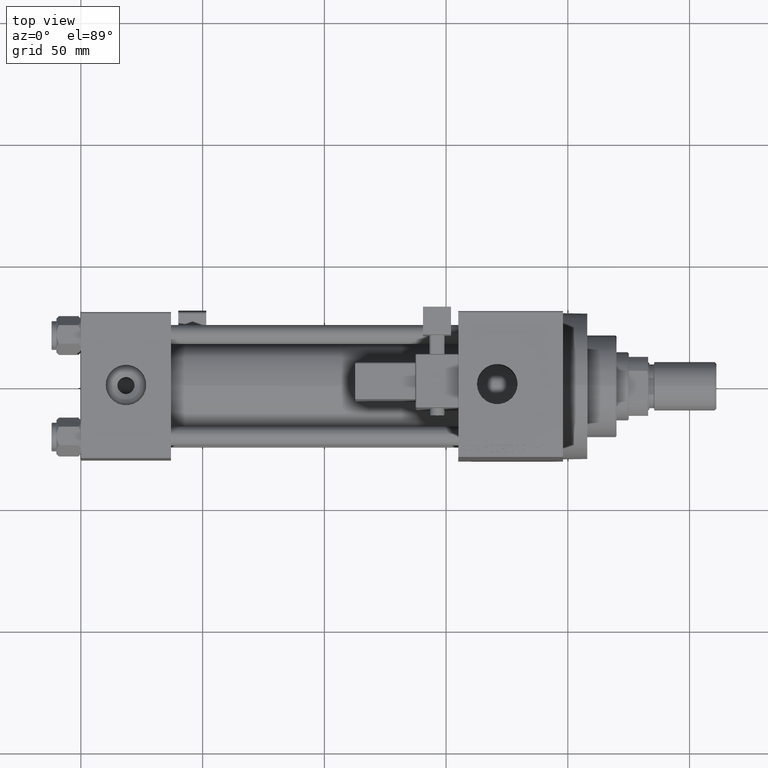
[diagram: clean part render]
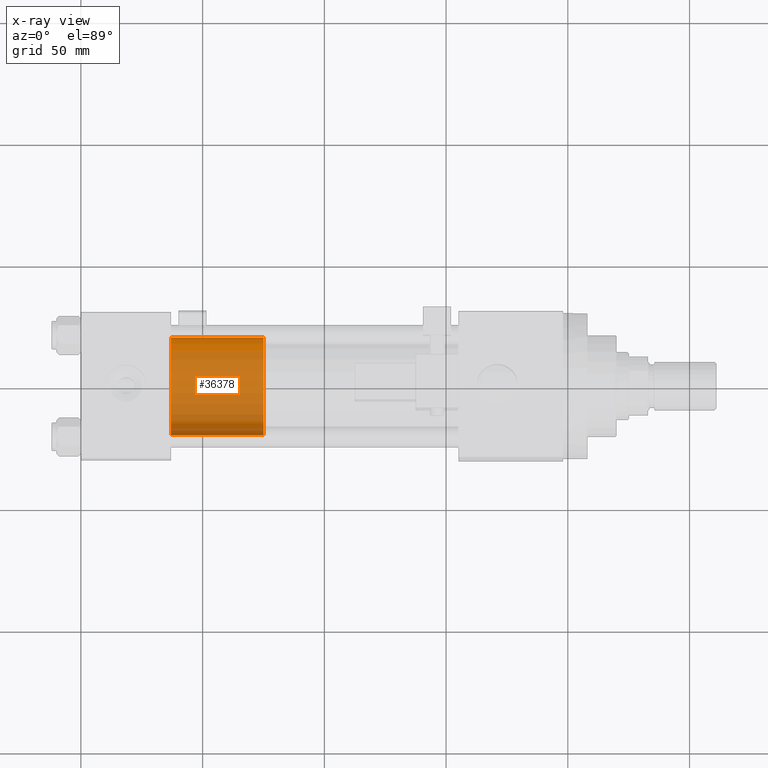
[diagram: x-ray — body ghosted, one internal face saturated and labeled with its STEP entity id]
A machine part, top view, then the same camera in x-ray: the body is ghosted and one INTERNAL B-rep face — a face not visible from any outside direction — is saturated and labeled: STEP entity #36378.
In plain terms, the highlighted cylindrical surface (partial cylindrical patch) has radius 20 mm, axis along (-1, 0, 0).
Its self-contained STEP definition (entity closure, byte-faithful):
#1582 = CARTESIAN_POINT ( 'NONE',  ( 0.000000000000000000, 0.000000000000000000, 0.000000000000000000 ) ) ;
#1606 = CIRCLE ( 'NONE', #14504, 20.00000000000000000 ) ;
#1758 = EDGE_LOOP ( 'NONE', ( #19762, #49198, #12362, #10225 ) ) ;
#2514 = FACE_OUTER_BOUND ( 'NONE', #1758, .T. ) ;
#5119 = DIRECTION ( 'NONE',  ( 0.000000000000000000, 0.000000000000000000, 1.000000000000000000 ) ) ;
#7170 = DIRECTION ( 'NONE',  ( -0.000000000000000000, -0.000000000000000000, -1.000000000000000000 ) ) ;
#10225 = ORIENTED_EDGE ( 'NONE', *, *, #32866, .F. ) ;
#12362 = ORIENTED_EDGE ( 'NONE', *, *, #26345, .T. ) ;
#14504 = AXIS2_PLACEMENT_3D ( 'NONE', #1582, #5119, #35858 ) ;
#15203 = CARTESIAN_POINT ( 'NONE',  ( -20.00000000000000000, 0.000000000000000000, 38.00000000000000000 ) ) ;
#16657 = VERTEX_POINT ( 'NONE', #17854 ) ;
#17854 = CARTESIAN_POINT ( 'NONE',  ( 20.00000000000000000, 2.449293598294706513E-15, 0.000000000000000000 ) ) ;
#18232 = LINE ( 'NONE', #36895, #22697 ) ;
#18819 = VERTEX_POINT ( 'NONE', #32053 ) ;
#19071 = EDGE_CURVE ( 'NONE', #39864, #18819, #23970, .T. ) ;
#19762 = ORIENTED_EDGE ( 'NONE', *, *, #19071, .F. ) ;
#21903 = DIRECTION ( 'NONE',  ( -0.000000000000000000, -0.000000000000000000, -1.000000000000000000 ) ) ;
#22697 = VECTOR ( 'NONE', #29325, 1000.000000000000000 ) ;
#23680 = CARTESIAN_POINT ( 'NONE',  ( -20.00000000000000000, 0.000000000000000000, 0.000000000000000000 ) ) ;
#23970 = CIRCLE ( 'NONE', #35237, 20.00000000000000000 ) ;
#26226 = CARTESIAN_POINT ( 'NONE',  ( 0.000000000000000000, 0.000000000000000000, 38.00000000000000000 ) ) ;
#26345 = EDGE_CURVE ( 'NONE', #16657, #37069, #1606, .T. ) ;
#26474 = CARTESIAN_POINT ( 'NONE',  ( 20.00000000000000000, 2.449293598294706513E-15, 38.00000000000000000 ) ) ;
#29325 = DIRECTION ( 'NONE',  ( -0.000000000000000000, -0.000000000000000000, -1.000000000000000000 ) ) ;
#29462 = CYLINDRICAL_SURFACE ( 'NONE', #41349, 20.00000000000000000 ) ;
#32053 = CARTESIAN_POINT ( 'NONE',  ( -20.00000000000000000, 0.000000000000000000, 38.00000000000000000 ) ) ;
#32866 = EDGE_CURVE ( 'NONE', #18819, #37069, #41713, .T. ) ;
#33239 = VECTOR ( 'NONE', #7170, 1000.000000000000000 ) ;
#33565 = DIRECTION ( 'NONE',  ( 0.000000000000000000, 0.000000000000000000, 1.000000000000000000 ) ) ;
#35237 = AXIS2_PLACEMENT_3D ( 'NONE', #26226, #33565, #38560 ) ;
#35858 = DIRECTION ( 'NONE',  ( 1.000000000000000000, 0.000000000000000000, 0.000000000000000000 ) ) ;
#36378 = ADVANCED_FACE ( 'NONE', ( #2514 ), #29462, .T. ) ;
#36895 = CARTESIAN_POINT ( 'NONE',  ( 20.00000000000000000, 2.449293598294706513E-15, 38.00000000000000000 ) ) ;
#37069 = VERTEX_POINT ( 'NONE', #23680 ) ;
#37295 = DIRECTION ( 'NONE',  ( -1.000000000000000000, 0.000000000000000000, 0.000000000000000000 ) ) ;
#38560 = DIRECTION ( 'NONE',  ( 1.000000000000000000, 0.000000000000000000, 0.000000000000000000 ) ) ;
#39864 = VERTEX_POINT ( 'NONE', #26474 ) ;
#41349 = AXIS2_PLACEMENT_3D ( 'NONE', #44883, #21903, #37295 ) ;
#41713 = LINE ( 'NONE', #15203, #33239 ) ;
#44883 = CARTESIAN_POINT ( 'NONE',  ( 0.000000000000000000, 0.000000000000000000, 38.00000000000000000 ) ) ;
#47849 = EDGE_CURVE ( 'NONE', #39864, #16657, #18232, .T. ) ;
#49198 = ORIENTED_EDGE ( 'NONE', *, *, #47849, .T. ) ;